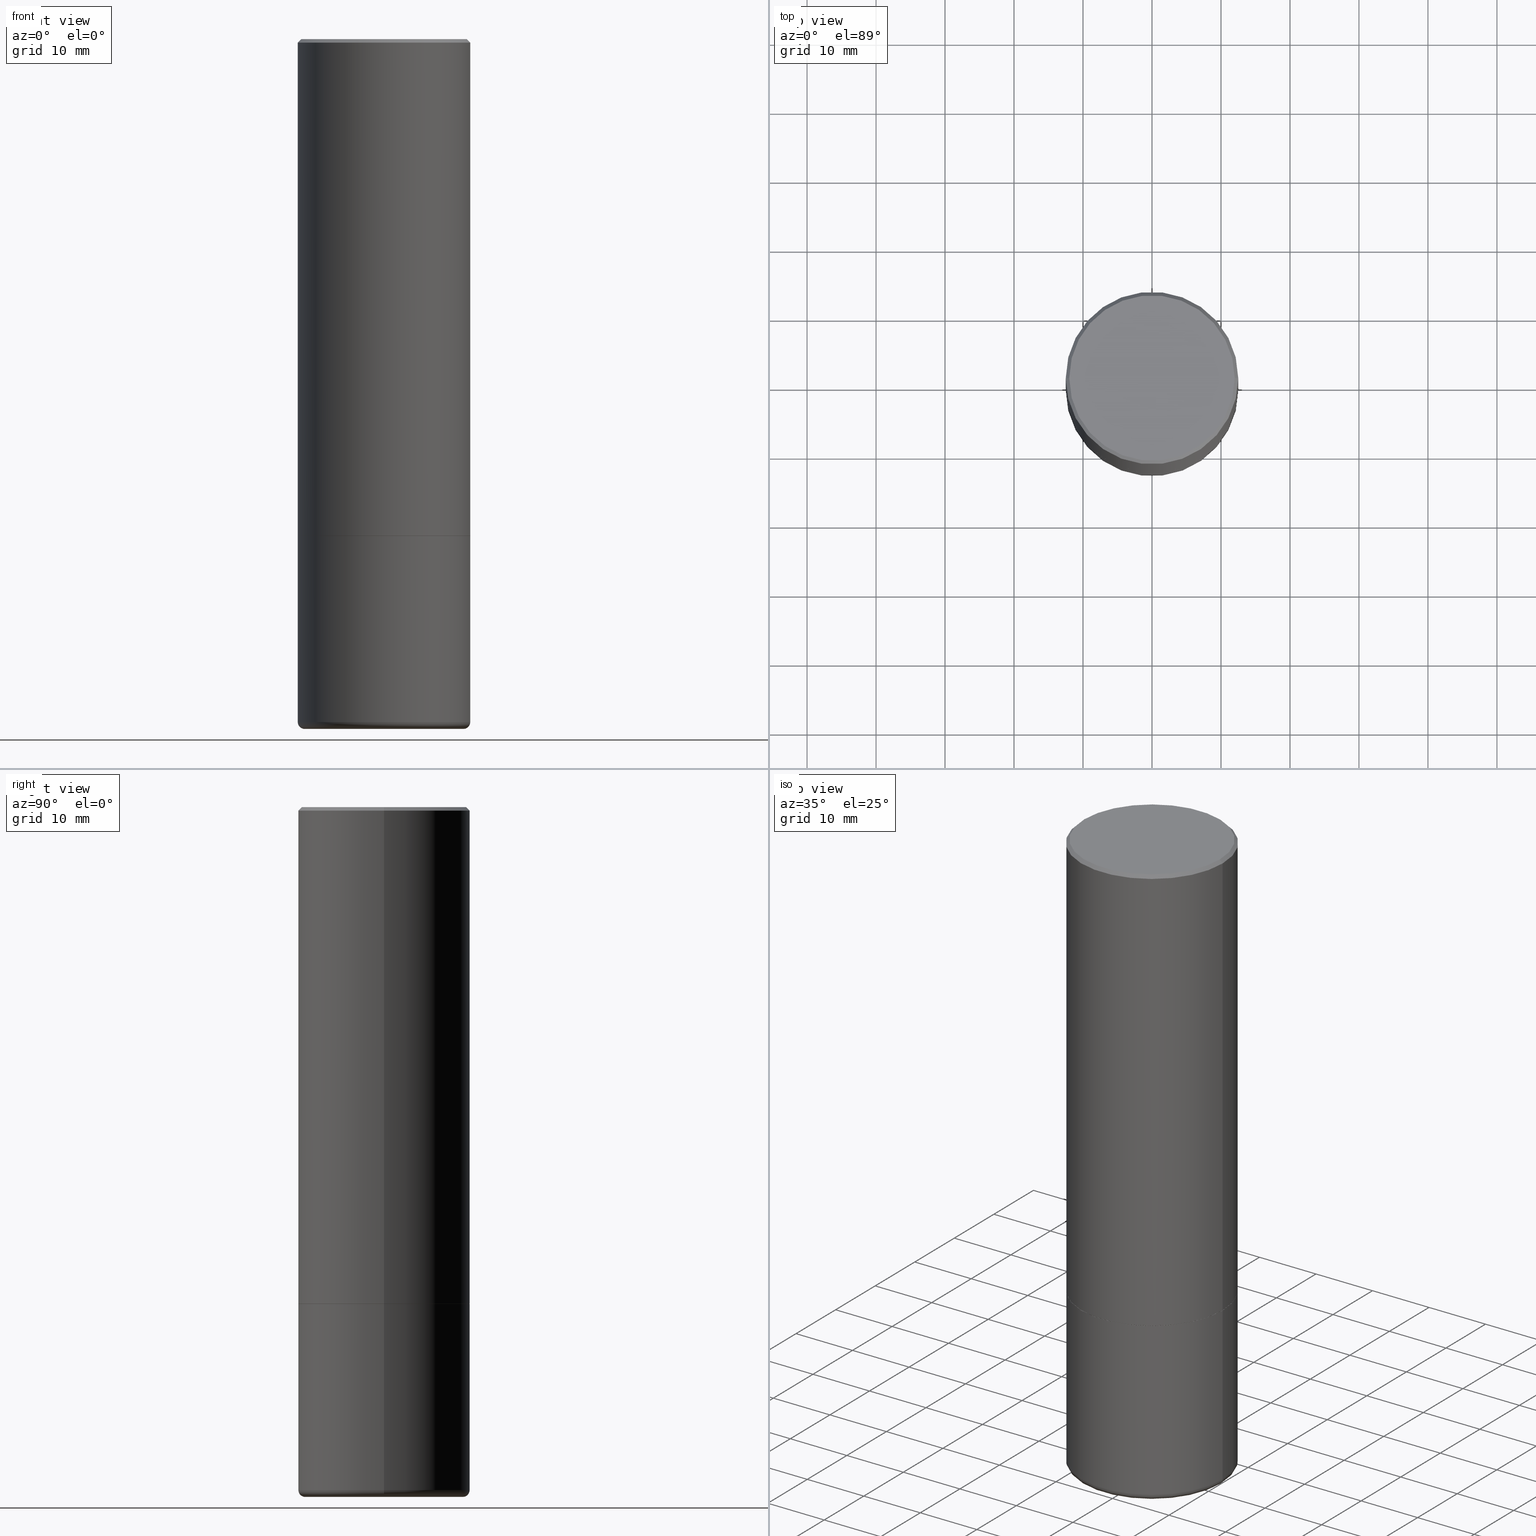
[diagram: canonical four-view strip — front | top / right | iso, engineering-drawing reading convention]
A machine part, canonical four-view strip (front | top / right | iso — engineering-drawing reading convention). The complete STEP part file that produces these views, byte-faithful:
ISO-10303-21;
HEADER;
FILE_DESCRIPTION (( 'STEP AP203' ),
    '1' );
FILE_NAME ('47091.STEP',
    '2024-03-05T19:52:35',
    ( '' ),
    ( '' ),
    'SwSTEP 2.0',
    'SolidWorks 2023',
    '' );
FILE_SCHEMA (( 'CONFIG_CONTROL_DESIGN' ));
ENDSEC;

DATA;
#1 = CARTESIAN_POINT ( 'NONE',  ( -0.4921499999999999764, 3.496936074043332897E-15, -2.420853904668951509E-29 ) ) ;
#2 = APPROVAL ( #293, 'UNSPECIFIED' ) ;
#3 = SHAPE_DEFINITION_REPRESENTATION ( #163, #88 ) ;
#4 = EDGE_LOOP ( 'NONE', ( #301, #158, #31, #171 ) ) ;
#5 = AXIS2_PLACEMENT_3D ( 'NONE', #11, #272, #70 ) ;
#6 = PERSON_AND_ORGANIZATION ( #377, #400 ) ;
#7 = CARTESIAN_POINT ( 'NONE',  ( 6.931925878012389760E-29, -9.896953003084782463E-15, -2.834600000000000453 ) ) ;
#8 = ADVANCED_FACE ( 'NONE', ( #323 ), #334, .F. ) ;
#9 = APPROVAL_STATUS ( 'not_yet_approved' ) ;
#10 = ORIENTED_EDGE ( 'NONE', *, *, #351, .F. ) ;
#11 = CARTESIAN_POINT ( 'NONE',  ( 0.000000000000000000, 0.000000000000000000, 0.000000000000000000 ) ) ;
#12 = APPLICATION_CONTEXT ( 'configuration controlled 3d designs of mechanical parts and assemblies' ) ;
#13 = CALENDAR_DATE ( 2024, 5, 3 ) ;
#14 = DIRECTION ( 'NONE',  ( 2.438088387897960049E-29, -3.491481338843145188E-15, -1.000000000000000000 ) ) ;
#15 = CARTESIAN_POINT ( 'NONE',  ( 0.4911499999999999755, -1.332663512223039065E-14, -2.834600000000000453 ) ) ;
#16 = DIRECTION ( 'NONE',  ( 2.445468806185136597E-29, -3.491481338843145583E-15, -1.000000000000000000 ) ) ;
#17 = CARTESIAN_POINT ( 'NONE',  ( 0.000000000000000000, 0.000000000000000000, 0.000000000000000000 ) ) ;
#18 = CIRCLE ( 'NONE', #253, 0.4921499999999999764 ) ;
#19 = DIRECTION ( 'NONE',  ( 1.000000000000000000, -6.982962677686265133E-15, 0.000000000000000000 ) ) ;
#20 = VERTEX_POINT ( 'NONE', #239 ) ;
#21 = CARTESIAN_POINT ( 'NONE',  ( -0.4921499999999999764, 3.366835455046432478E-15, -0.02000000000000010797 ) ) ;
#22 = LENGTH_MEASURE_WITH_UNIT ( LENGTH_MEASURE( 0.02539999999999999897 ), #190 );
#23 = ADVANCED_FACE ( 'NONE', ( #330 ), #241, .T. ) ;
#24 = CONICAL_SURFACE ( 'NONE', #375, 0.4911499999999999755, 0.7853981633974482790 ) ;
#25 = CARTESIAN_POINT ( 'NONE',  ( -0.4911499999999999755, -6.407122356399049785E-15, -2.834600000000000453 ) ) ;
#26 = DIRECTION ( 'NONE',  ( -2.445468806185136597E-29, 3.491481338843145583E-15, 1.000000000000000000 ) ) ;
#27 =( CONVERSION_BASED_UNIT ( 'INCH', #22 ) LENGTH_UNIT ( ) NAMED_UNIT ( #343 ) );
#28 = AXIS2_PLACEMENT_3D ( 'NONE', #290, #26, #318 ) ;
#29 = CARTESIAN_POINT ( 'NONE',  ( 0.000000000000000000, 0.000000000000000000, 0.000000000000000000 ) ) ;
#30 = ADVANCED_FACE ( 'NONE', ( #260 ), #230, .T. ) ;
#31 = ORIENTED_EDGE ( 'NONE', *, *, #246, .T. ) ;
#32 = DATE_AND_TIME ( #265, #55 ) ;
#33 = APPROVAL_ROLE ( '' ) ;
#34 = CARTESIAN_POINT ( 'NONE',  ( 3.297005828269567997E-15, 0.4721499999999996255, -1.509776258206526442E-15 ) ) ;
#35 = AXIS2_PLACEMENT_3D ( 'NONE', #302, #367, #129 ) ;
#36 = PERSON_AND_ORGANIZATION ( #377, #400 ) ;
#37 = APPROVAL_PERSON_ORGANIZATION ( #397, #2, #33 ) ;
#38 = FACE_OUTER_BOUND ( 'NONE', #182, .T. ) ;
#39 = PERSON_AND_ORGANIZATION ( #377, #400 ) ;
#40 = APPROVAL_ROLE ( '' ) ;
#41 = VERTEX_POINT ( 'NONE', #136 ) ;
#42 = AXIS2_PLACEMENT_3D ( 'NONE', #274, #275, #210 ) ;
#43 = APPLICATION_CONTEXT ( 'configuration controlled 3d designs of mechanical parts and assemblies' ) ;
#44 = VERTEX_POINT ( 'NONE', #228 ) ;
#45 = LOCAL_TIME ( 14, 52, 35.00000000000000000, #303 ) ;
#46 = DIRECTION ( 'NONE',  ( 1.000000000000000000, -6.982962677686265922E-15, 4.876176775795935793E-29 ) ) ;
#47 = EDGE_LOOP ( 'NONE', ( #82, #65 ) ) ;
#48 = CARTESIAN_POINT ( 'NONE',  ( 9.531459218987189074E-29, -1.360839766627504420E-14, -3.897600000000000176 ) ) ;
#49 = EDGE_CURVE ( 'NONE', #362, #149, #179, .T. ) ;
#50 = DIRECTION ( 'NONE',  ( -2.445468806185136597E-29, 3.491481338843145583E-15, 1.000000000000000000 ) ) ;
#51 = CIRCLE ( 'NONE', #79, 0.03939999999999978936 ) ;
#52 = DIRECTION ( 'NONE',  ( -2.445468806185136877E-29, 3.491481338843145188E-15, 1.000000000000000000 ) ) ;
#53 = ORIENTED_EDGE ( 'NONE', *, *, #258, .T. ) ;
#54 = CARTESIAN_POINT ( 'NONE',  ( 6.929480409206204157E-29, -9.893461521745937878E-15, -2.833600000000000119 ) ) ;
#55 = LOCAL_TIME ( 14, 52, 35.00000000000000000, #292 ) ;
#56 = LINE ( 'NONE', #288, #93 ) ;
#57 = DIRECTION ( 'NONE',  ( 1.000000000000000000, -6.982962677686264344E-15, 0.000000000000000000 ) ) ;
#58 = EDGE_CURVE ( 'NONE', #348, #298, #110, .T. ) ;
#59 = VECTOR ( 'NONE', #409, 39.37007874015748143 ) ;
#60 = ADVANCED_FACE ( 'NONE', ( #360 ), #24, .T. ) ;
#61 = VERTEX_POINT ( 'NONE', #63 ) ;
#62 = COORDINATED_UNIVERSAL_TIME_OFFSET ( 5, 0, .BEHIND. ) ;
#63 = CARTESIAN_POINT ( 'NONE',  ( 0.4721499999999996255, -3.342703923013973791E-15, 2.774533118565500199E-16 ) ) ;
#64 = CC_DESIGN_APPROVAL ( #176, ( #371 ) ) ;
#65 = ORIENTED_EDGE ( 'NONE', *, *, #211, .F. ) ;
#66 = DATE_AND_TIME ( #324, #123 ) ;
#67 = ORIENTED_EDGE ( 'NONE', *, *, #94, .T. ) ;
#68 = DESIGN_CONTEXT ( 'detailed design', #12, 'design' ) ;
#69 = EDGE_CURVE ( 'NONE', #44, #393, #218, .T. ) ;
#70 = DIRECTION ( 'NONE',  ( 1.000000000000000000, -6.982962677686265922E-15, 4.876176775795935793E-29 ) ) ;
#71 = CIRCLE ( 'NONE', #200, 0.4911499999999999755 ) ;
#72 = CARTESIAN_POINT ( 'NONE',  ( 6.931925878012389760E-29, -9.896953003084782463E-15, -2.834600000000000453 ) ) ;
#73 = CIRCLE ( 'NONE', #102, 0.4921499999999999764 ) ;
#74 = ORIENTED_EDGE ( 'NONE', *, *, #126, .T. ) ;
#75 = CARTESIAN_POINT ( 'NONE',  ( -0.4921499999999999764, -8.255739260636578857E-15, -2.834600000000000009 ) ) ;
#76 = ADVANCED_FACE ( 'NONE', ( #38 ), #340, .T. ) ;
#77 = DIRECTION ( 'NONE',  ( -2.445468806185136877E-29, 3.491481338843145188E-15, 1.000000000000000000 ) ) ;
#78 = DIRECTION ( 'NONE',  ( -2.445468806185136597E-29, 3.491481338843145583E-15, 1.000000000000000000 ) ) ;
#79 = AXIS2_PLACEMENT_3D ( 'NONE', #308, #245, #405 ) ;
#80 = DIRECTION ( 'NONE',  ( 1.000000000000000000, -6.982962677686265922E-15, 0.000000000000000000 ) ) ;
#81 = DIRECTION ( 'NONE',  ( 1.000000000000000000, -6.982962677686265922E-15, 4.876176775795935793E-29 ) ) ;
#82 = ORIENTED_EDGE ( 'NONE', *, *, #331, .F. ) ;
#83 = DIRECTION ( 'NONE',  ( -2.445468806185136597E-29, 3.491481338843145583E-15, 1.000000000000000000 ) ) ;
#84 = AXIS2_PLACEMENT_3D ( 'NONE', #54, #280, #181 ) ;
#85 = CLOSED_SHELL ( 'NONE', ( #60, #142, #221, #395, #120, #364, #276, #8 ) ) ;
#86 = APPROVAL_PERSON_ORGANIZATION ( #359, #89, #135 ) ;
#87 = DIRECTION ( 'NONE',  ( -1.000000000000000000, 6.982962677686265922E-15, -4.876176775795935793E-29 ) ) ;
#88 = ADVANCED_BREP_SHAPE_REPRESENTATION ( '47091', ( #96, #244, #295 ), #248 ) ;
#89 = APPROVAL ( #9, 'UNSPECIFIED' ) ;
#90 = PLANE ( 'NONE',  #282 ) ;
#91 = ORIENTED_EDGE ( 'NONE', *, *, #216, .T. ) ;
#92 = DIRECTION ( 'NONE',  ( -2.445468806185136877E-29, 3.491481338843145188E-15, 1.000000000000000000 ) ) ;
#93 = VECTOR ( 'NONE', #162, 39.37007874015748143 ) ;
#94 = EDGE_CURVE ( 'NONE', #362, #298, #402, .T. ) ;
#95 = DIRECTION ( 'NONE',  ( 1.000000000000000000, -6.982962677686265922E-15, 0.000000000000000000 ) ) ;
#96 = MANIFOLD_SOLID_BREP ( 'Body-Move/Copy2[1]', #309 ) ;
#97 = CALENDAR_DATE ( 2024, 5, 3 ) ;
#98 = ORIENTED_EDGE ( 'NONE', *, *, #126, .F. ) ;
#99 = PERSON_AND_ORGANIZATION_ROLE ( 'creator' ) ;
#100 = VERTEX_POINT ( 'NONE', #75 ) ;
#101 = AXIS2_PLACEMENT_3D ( 'NONE', #335, #16, #277 ) ;
#102 = AXIS2_PLACEMENT_3D ( 'NONE', #256, #217, #418 ) ;
#103 = APPROVAL_DATE_TIME ( #165, #2 ) ;
#104 = ORIENTED_EDGE ( 'NONE', *, *, #304, .T. ) ;
#105 = EDGE_CURVE ( 'NONE', #305, #61, #187, .T. ) ;
#106 = DIRECTION ( 'NONE',  ( 0.000000000000000000, 0.000000000000000000, 1.000000000000000000 ) ) ;
#107 = DIRECTION ( 'NONE',  ( -2.445468806185136597E-29, 3.491481338843145583E-15, 1.000000000000000000 ) ) ;
#108 = UNCERTAINTY_MEASURE_WITH_UNIT (LENGTH_MEASURE( 1.000000000000000082E-05 ), #27, 'distance_accuracy_value', 'NONE');
#109 = DIRECTION ( 'NONE',  ( 1.000000000000000000, -6.982962677686264344E-15, 0.000000000000000000 ) ) ;
#110 = CIRCLE ( 'NONE', #261, 0.4921499999999999764 ) ;
#111 = DIRECTION ( 'NONE',  ( -2.445468806185136597E-29, 3.491481338843145583E-15, 1.000000000000000000 ) ) ;
#112 = FACE_OUTER_BOUND ( 'NONE', #193, .T. ) ;
#113 = ORIENTED_EDGE ( 'NONE', *, *, #304, .F. ) ;
#114 = DIRECTION ( 'NONE',  ( -2.445468806185136597E-29, 3.491481338843145583E-15, 1.000000000000000000 ) ) ;
#115 = DIRECTION ( 'NONE',  ( -2.445468806185136597E-29, 3.491481338843145583E-15, 1.000000000000000000 ) ) ;
#116 = ORIENTED_EDGE ( 'NONE', *, *, #205, .F. ) ;
#117 = DIRECTION ( 'NONE',  ( 1.000000000000000000, -6.982962677686265922E-15, 4.876176775795935793E-29 ) ) ;
#118 = CARTESIAN_POINT ( 'NONE',  ( -0.4911499999999999755, -6.401823902050825805E-15, -2.834600000000000453 ) ) ;
#119 = LINE ( 'NONE', #1, #262 ) ;
#120 = ADVANCED_FACE ( 'NONE', ( #240 ), #347, .T. ) ;
#121 = VERTEX_POINT ( 'NONE', #141 ) ;
#122 = AXIS2_PLACEMENT_3D ( 'NONE', #243, #404, #177 ) ;
#123 = LOCAL_TIME ( 14, 52, 35.00000000000000000, #62 ) ;
#124 =( NAMED_UNIT ( * ) PLANE_ANGLE_UNIT ( ) SI_UNIT ( $, .RADIAN. ) );
#125 = CYLINDRICAL_SURFACE ( 'NONE', #207, 0.4921499999999999764 ) ;
#126 = EDGE_CURVE ( 'NONE', #149, #362, #327, .T. ) ;
#127 = PERSON_AND_ORGANIZATION_ROLE ( 'design_supplier' ) ;
#128 = ORIENTED_EDGE ( 'NONE', *, *, #205, .T. ) ;
#129 = DIRECTION ( 'NONE',  ( 1.000000000000000000, -6.982962677686265133E-15, 4.883557194083112340E-29 ) ) ;
#130 = PRODUCT_DEFINITION_FORMATION_WITH_SPECIFIED_SOURCE ( 'ANY', '', #222, .NOT_KNOWN. ) ;
#131 = MECHANICAL_CONTEXT ( 'NONE', #43, 'mechanical' ) ;
#132 = DIRECTION ( 'NONE',  ( 1.000000000000000000, -6.982962677686264344E-15, 0.000000000000000000 ) ) ;
#133 = SECURITY_CLASSIFICATION_LEVEL ( 'unclassified' ) ;
#134 = ORIENTED_EDGE ( 'NONE', *, *, #105, .T. ) ;
#135 = APPROVAL_ROLE ( '' ) ;
#136 = CARTESIAN_POINT ( 'NONE',  ( 0.4921499999999998098, -1.704506274809833840E-14, -3.897600000000000176 ) ) ;
#137 = AXIS2_PLACEMENT_3D ( 'NONE', #237, #366, #95 ) ;
#138 = CC_DESIGN_APPROVAL ( #2, ( #130 ) ) ;
#139 = ORIENTED_EDGE ( 'NONE', *, *, #69, .T. ) ;
#140 = DATE_AND_TIME ( #13, #45 ) ;
#141 = CARTESIAN_POINT ( 'NONE',  ( 0.4527499999999999858, -1.690749838334791918E-14, -3.936999999999999389 ) ) ;
#142 = ADVANCED_FACE ( 'NONE', ( #184 ), #338, .T. ) ;
#143 = LINE ( 'NONE', #21, #59 ) ;
#144 = AXIS2_PLACEMENT_3D ( 'NONE', #406, #306, #80 ) ;
#145 = CC_DESIGN_SECURITY_CLASSIFICATION ( #371, ( #130 ) ) ;
#146 = LINE ( 'NONE', #249, #234 ) ;
#147 = AXIS2_PLACEMENT_3D ( 'NONE', #350, #254, #259 ) ;
#148 = CARTESIAN_POINT ( 'NONE',  ( -6.785034193178930130E-45, 9.687230607472910058E-31, 2.774533118565267978E-16 ) ) ;
#149 = VERTEX_POINT ( 'NONE', #369 ) ;
#150 = DIRECTION ( 'NONE',  ( 1.000000000000000000, -6.982962677686265133E-15, 4.883557194083112340E-29 ) ) ;
#151 = EDGE_CURVE ( 'NONE', #305, #298, #143, .T. ) ;
#152 = FACE_OUTER_BOUND ( 'NONE', #233, .T. ) ;
#153 = CIRCLE ( 'NONE', #389, 0.4921499999999999764 ) ;
#154 = VECTOR ( 'NONE', #155, 39.37007874015748854 ) ;
#155 = DIRECTION ( 'NONE',  ( 0.7071067811865474617, -2.468850131082256666E-15, 0.7071067811865474617 ) ) ;
#156 = EDGE_CURVE ( 'NONE', #61, #305, #417, .T. ) ;
#157 = DIRECTION ( 'NONE',  ( 1.000000000000000000, -6.982962677686265922E-15, 0.000000000000000000 ) ) ;
#158 = ORIENTED_EDGE ( 'NONE', *, *, #49, .T. ) ;
#159 = ORIENTED_EDGE ( 'NONE', *, *, #354, .T. ) ;
#160 = VECTOR ( 'NONE', #77, 39.37007874015748143 ) ;
#161 = ORIENTED_EDGE ( 'NONE', *, *, #281, .F. ) ;
#162 = DIRECTION ( 'NONE',  ( -2.445468806185136877E-29, 3.491481338843145188E-15, 1.000000000000000000 ) ) ;
#163 = PRODUCT_DEFINITION_SHAPE ( 'NONE', 'NONE',  #317 ) ;
#164 =( NAMED_UNIT ( * ) SI_UNIT ( $, .STERADIAN. ) SOLID_ANGLE_UNIT ( ) );
#165 = DATE_AND_TIME ( #299, #225 ) ;
#166 = ORIENTED_EDGE ( 'NONE', *, *, #345, .F. ) ;
#167 = DATE_TIME_ROLE ( 'creation_date' ) ;
#168 = ORIENTED_EDGE ( 'NONE', *, *, #211, .T. ) ;
#169 = ADVANCED_FACE ( 'NONE', ( #112 ), #178, .T. ) ;
#170 = DATE_TIME_ROLE ( 'classification_date' ) ;
#171 = ORIENTED_EDGE ( 'NONE', *, *, #321, .F. ) ;
#172 = PERSON_AND_ORGANIZATION_ROLE ( 'creator' ) ;
#173 = CARTESIAN_POINT ( 'NONE',  ( -0.4527499999999999858, -1.039141543012119071E-14, -3.897600000000000176 ) ) ;
#174 = CONICAL_SURFACE ( 'NONE', #101, 0.4921499999999999764, 0.7853981633974471688 ) ;
#175 = EDGE_LOOP ( 'NONE', ( #413, #337, #98, #297 ) ) ;
#176 = APPROVAL ( #332, 'UNSPECIFIED' ) ;
#177 = DIRECTION ( 'NONE',  ( 1.000000000000000000, -6.982962677686265922E-15, 4.882029041999365698E-29 ) ) ;
#178 = PLANE ( 'NONE',  #42 ) ;
#179 = CIRCLE ( 'NONE', #137, 0.4921500000000003094 ) ;
#180 = AXIS2_PLACEMENT_3D ( 'NONE', #186, #316, #57 ) ;
#181 = DIRECTION ( 'NONE',  ( 1.000000000000000000, -6.982962677686265922E-15, 0.000000000000000000 ) ) ;
#182 = EDGE_LOOP ( 'NONE', ( #383, #53, #313, #113 ) ) ;
#183 = CC_DESIGN_PERSON_AND_ORGANIZATION_ASSIGNMENT ( #6, #231, ( #371 ) ) ;
#184 = FACE_OUTER_BOUND ( 'NONE', #291, .T. ) ;
#185 = LINE ( 'NONE', #25, #188 ) ;
#186 = CARTESIAN_POINT ( 'NONE',  ( 6.931925878012389760E-29, -9.896953003084782463E-15, -2.834600000000000453 ) ) ;
#187 = CIRCLE ( 'NONE', #122, 0.4721499999999996255 ) ;
#188 = VECTOR ( 'NONE', #349, 39.37007874015748854 ) ;
#189 = CARTESIAN_POINT ( 'NONE',  ( -0.4921500000000003094, -1.484709500218062761E-15, -2.833600000000000119 ) ) ;
#190 =( LENGTH_UNIT ( ) NAMED_UNIT ( * ) SI_UNIT ( $, .METRE. ) );
#191 = AXIS2_PLACEMENT_3D ( 'NONE', #17, #339, #311 ) ;
#192 = APPROVAL_PERSON_ORGANIZATION ( #236, #176, #40 ) ;
#193 = EDGE_LOOP ( 'NONE', ( #278, #268 ) ) ;
#194 = VERTEX_POINT ( 'NONE', #15 ) ;
#195 = DIRECTION ( 'NONE',  ( 1.000000000000000000, 0.000000000000000000, 0.000000000000000000 ) ) ;
#196 = EDGE_CURVE ( 'NONE', #61, #348, #146, .T. ) ;
#197 = ORIENTED_EDGE ( 'NONE', *, *, #246, .F. ) ;
#198 = COORDINATED_UNIVERSAL_TIME_OFFSET ( 5, 0, .BEHIND. ) ;
#199 = DIRECTION ( 'NONE',  ( 7.105427357601001859E-15, 1.000000000000000000, -3.491481338843145583E-15 ) ) ;
#200 = AXIS2_PLACEMENT_3D ( 'NONE', #72, #111, #109 ) ;
#201 = EDGE_CURVE ( 'NONE', #121, #41, #51, .T. ) ;
#202 = ORIENTED_EDGE ( 'NONE', *, *, #321, .T. ) ;
#203 = COORDINATED_UNIVERSAL_TIME_OFFSET ( 5, 0, .BEHIND. ) ;
#204 = CARTESIAN_POINT ( 'NONE',  ( 4.890937612370299433E-31, -6.982962677686328587E-17, -0.02000000000000010797 ) ) ;
#205 = EDGE_CURVE ( 'NONE', #41, #393, #355, .T. ) ;
#206 = ORIENTED_EDGE ( 'NONE', *, *, #196, .T. ) ;
#207 = AXIS2_PLACEMENT_3D ( 'NONE', #29, #384, #117 ) ;
#208 = FACE_OUTER_BOUND ( 'NONE', #255, .T. ) ;
#209 = CARTESIAN_POINT ( 'NONE',  ( -0.4921500000000000874, 3.496936074043333686E-15, -2.420853904668952350E-29 ) ) ;
#210 = DIRECTION ( 'NONE',  ( -1.000000000000000000, 6.982962677686265922E-15, -4.876176775795935793E-29 ) ) ;
#211 = EDGE_CURVE ( 'NONE', #284, #194, #71, .T. ) ;
#212 = VECTOR ( 'NONE', #52, 39.37007874015748143 ) ;
#213 = DIRECTION ( 'NONE',  ( 1.000000000000000000, -6.982962677686265133E-15, 0.000000000000000000 ) ) ;
#214 = DIRECTION ( 'NONE',  ( -2.445468806185136597E-29, 3.491481338843145583E-15, 1.000000000000000000 ) ) ;
#215 = DIRECTION ( 'NONE',  ( -2.445468806185136597E-29, 3.491481338843145583E-15, 1.000000000000000000 ) ) ;
#216 = EDGE_CURVE ( 'NONE', #100, #20, #18, .T. ) ;
#217 = DIRECTION ( 'NONE',  ( -2.445468806185136597E-29, 3.491481338843145583E-15, 1.000000000000000000 ) ) ;
#218 = CIRCLE ( 'NONE', #387, 0.03939999999999978936 ) ;
#219 = CARTESIAN_POINT ( 'NONE',  ( -0.4921499999999998098, -1.011146159223171209E-14, -3.897600000000000176 ) ) ;
#220 = FACE_OUTER_BOUND ( 'NONE', #396, .T. ) ;
#221 = ADVANCED_FACE ( 'NONE', ( #208 ), #174, .T. ) ;
#222 = PRODUCT ( '47091', '47091', '', ( #131 ) ) ;
#223 = PLANE ( 'NONE',  #328 ) ;
#224 = AXIS2_PLACEMENT_3D ( 'NONE', #374, #78, #213 ) ;
#225 = LOCAL_TIME ( 14, 52, 35.00000000000000000, #203 ) ;
#226 = EDGE_LOOP ( 'NONE', ( #363, #139, #116, #361 ) ) ;
#227 = ORIENTED_EDGE ( 'NONE', *, *, #151, .F. ) ;
#228 = CARTESIAN_POINT ( 'NONE',  ( -0.4527499999999999858, -1.032022069355166022E-14, -3.936999999999999389 ) ) ;
#229 = APPLICATION_PROTOCOL_DEFINITION ( 'international standard', 'config_control_design', 1994, #43 ) ;
#230 = CYLINDRICAL_SURFACE ( 'NONE', #5, 0.4921499999999999764 ) ;
#231 = PERSON_AND_ORGANIZATION_ROLE ( 'classification_officer' ) ;
#232 = ORIENTED_EDGE ( 'NONE', *, *, #58, .T. ) ;
#233 = EDGE_LOOP ( 'NONE', ( #10, #168, #159, #346 ) ) ;
#234 = VECTOR ( 'NONE', #378, 39.37007874015748143 ) ;
#235 = CC_DESIGN_APPROVAL ( #89, ( #317 ) ) ;
#236 = PERSON_AND_ORGANIZATION ( #377, #400 ) ;
#237 = CARTESIAN_POINT ( 'NONE',  ( 6.929480409206204157E-29, -9.893461521745937878E-15, -2.833600000000000119 ) ) ;
#238 = CC_DESIGN_PERSON_AND_ORGANIZATION_ASSIGNMENT ( #267, #127, ( #130 ) ) ;
#239 = CARTESIAN_POINT ( 'NONE',  ( 0.4921499999999999764, -1.333361808490807666E-14, -2.834600000000000009 ) ) ;
#240 = FACE_OUTER_BOUND ( 'NONE', #4, .T. ) ;
#241 = TOROIDAL_SURFACE ( 'NONE', #35, 0.4527499999999999858, 0.03939999999999978936 ) ;
#242 = CIRCLE ( 'NONE', #341, 0.4921499999999999764 ) ;
#243 = CARTESIAN_POINT ( 'NONE',  ( -6.785034193178930130E-45, 9.687230607472910058E-31, 2.774533118565267978E-16 ) ) ;
#244 = MANIFOLD_SOLID_BREP ( 'Body-Move/Copy2[2]', #85 ) ;
#245 = DIRECTION ( 'NONE',  ( -6.982962677686266711E-15, -1.000000000000000000, 3.491481338843145583E-15 ) ) ;
#246 = EDGE_CURVE ( 'NONE', #149, #348, #373, .T. ) ;
#247 = CARTESIAN_POINT ( 'NONE',  ( 6.931925878012387517E-29, -9.896953003084780885E-15, -2.834600000000000009 ) ) ;
#248 =( GEOMETRIC_REPRESENTATION_CONTEXT ( 3 ) GLOBAL_UNCERTAINTY_ASSIGNED_CONTEXT ( ( #108 ) ) GLOBAL_UNIT_ASSIGNED_CONTEXT ( ( #27, #124, #164 ) ) REPRESENTATION_CONTEXT ( 'NONE', 'WORKASPACE' ) );
#249 = CARTESIAN_POINT ( 'NONE',  ( 0.4921499999999999764, -3.446223716380122349E-15, -0.02000000000000010797 ) ) ;
#250 = EDGE_CURVE ( 'NONE', #121, #44, #410, .T. ) ;
#251 = LINE ( 'NONE', #379, #154 ) ;
#252 = DIRECTION ( 'NONE',  ( 1.000000000000000000, -6.982962677686265922E-15, 0.000000000000000000 ) ) ;
#253 = AXIS2_PLACEMENT_3D ( 'NONE', #247, #214, #307 ) ;
#254 = DIRECTION ( 'NONE',  ( 2.445468806185136597E-29, -3.491481338843145583E-15, -1.000000000000000000 ) ) ;
#255 = EDGE_LOOP ( 'NONE', ( #370, #206, #232, #227 ) ) ;
#256 = CARTESIAN_POINT ( 'NONE',  ( 4.890937612370299433E-31, -6.982962677686328587E-17, -0.02000000000000010797 ) ) ;
#257 = ORIENTED_EDGE ( 'NONE', *, *, #345, .T. ) ;
#258 = EDGE_CURVE ( 'NONE', #44, #121, #398, .T. ) ;
#259 = DIRECTION ( 'NONE',  ( -1.000000000000000000, 6.982962677686265922E-15, 0.000000000000000000 ) ) ;
#260 = FACE_OUTER_BOUND ( 'NONE', #399, .T. ) ;
#261 = AXIS2_PLACEMENT_3D ( 'NONE', #204, #107, #358 ) ;
#262 = VECTOR ( 'NONE', #92, 39.37007874015748143 ) ;
#263 = PRODUCT_RELATED_PRODUCT_CATEGORY ( 'detail', '', ( #222 ) ) ;
#264 = ORIENTED_EDGE ( 'NONE', *, *, #281, .T. ) ;
#265 = CALENDAR_DATE ( 2024, 5, 3 ) ;
#266 = ORIENTED_EDGE ( 'NONE', *, *, #376, .F. ) ;
#267 = PERSON_AND_ORGANIZATION ( #377, #400 ) ;
#268 = ORIENTED_EDGE ( 'NONE', *, *, #258, .F. ) ;
#269 = ORIENTED_EDGE ( 'NONE', *, *, #105, .F. ) ;
#270 = AXIS2_PLACEMENT_3D ( 'NONE', #48, #342, #150 ) ;
#271 = APPROVAL_DATE_TIME ( #140, #176 ) ;
#272 = DIRECTION ( 'NONE',  ( -2.445468806185136597E-29, 3.491481338843145583E-15, 1.000000000000000000 ) ) ;
#273 = CC_DESIGN_PERSON_AND_ORGANIZATION_ASSIGNMENT ( #36, #172, ( #130 ) ) ;
#274 = CARTESIAN_POINT ( 'NONE',  ( 1.294548082096728723E-28, -8.994869573352928875E-15, -3.937000000000000277 ) ) ;
#275 = DIRECTION ( 'NONE',  ( 2.438088387897960049E-29, -3.491481338843145188E-15, -1.000000000000000000 ) ) ;
#276 = ADVANCED_FACE ( 'NONE', ( #415 ), #90, .F. ) ;
#277 = DIRECTION ( 'NONE',  ( -1.000000000000000000, 6.982962677686265922E-15, 0.000000000000000000 ) ) ;
#278 = ORIENTED_EDGE ( 'NONE', *, *, #250, .F. ) ;
#279 = CARTESIAN_POINT ( 'NONE',  ( 9.627810689950881427E-29, -1.374596203102546184E-14, -3.936999999999999389 ) ) ;
#280 = DIRECTION ( 'NONE',  ( -2.445468806185136597E-29, 3.491481338843145583E-15, 1.000000000000000000 ) ) ;
#281 = EDGE_CURVE ( 'NONE', #41, #20, #56, .T. ) ;
#282 = AXIS2_PLACEMENT_3D ( 'NONE', #356, #412, #81 ) ;
#283 = CARTESIAN_POINT ( 'NONE',  ( 9.531459218987189074E-29, -1.360839766627504420E-14, -3.897600000000000176 ) ) ;
#284 = VERTEX_POINT ( 'NONE', #118 ) ;
#285 = CARTESIAN_POINT ( 'NONE',  ( 6.931925878012387517E-29, -9.896953003084780885E-15, -2.834600000000000009 ) ) ;
#286 = ORIENTED_EDGE ( 'NONE', *, *, #156, .T. ) ;
#287 = AXIS2_PLACEMENT_3D ( 'NONE', #279, #50, #19 ) ;
#288 = CARTESIAN_POINT ( 'NONE',  ( 0.4921499999999999764, -3.436665081823295777E-15, 2.399810400207969603E-29 ) ) ;
#289 = ADVANCED_FACE ( 'NONE', ( #386 ), #125, .T. ) ;
#290 = CARTESIAN_POINT ( 'NONE',  ( 6.931925878012389760E-29, -9.896953003084782463E-15, -2.834600000000000453 ) ) ;
#291 = EDGE_LOOP ( 'NONE', ( #74, #67, #344, #197 ) ) ;
#292 = COORDINATED_UNIVERSAL_TIME_OFFSET ( 5, 0, .BEHIND. ) ;
#293 = APPROVAL_STATUS ( 'not_yet_approved' ) ;
#294 = DIRECTION ( 'NONE',  ( -1.000000000000000000, 6.982962677686265922E-15, -4.876176775795935793E-29 ) ) ;
#295 = AXIS2_PLACEMENT_3D ( 'NONE', #322, #106, #195 ) ;
#296 = ORIENTED_EDGE ( 'NONE', *, *, #196, .F. ) ;
#297 = ORIENTED_EDGE ( 'NONE', *, *, #354, .F. ) ;
#298 = VERTEX_POINT ( 'NONE', #320 ) ;
#299 = CALENDAR_DATE ( 2024, 5, 3 ) ;
#300 = EDGE_LOOP ( 'NONE', ( #257, #91 ) ) ;
#301 = ORIENTED_EDGE ( 'NONE', *, *, #94, .F. ) ;
#302 = CARTESIAN_POINT ( 'NONE',  ( 9.531459218987189074E-29, -1.360839766627504420E-14, -3.897600000000000176 ) ) ;
#303 = COORDINATED_UNIVERSAL_TIME_OFFSET ( 5, 0, .BEHIND. ) ;
#304 = EDGE_CURVE ( 'NONE', #393, #41, #153, .T. ) ;
#305 = VERTEX_POINT ( 'NONE', #416 ) ;
#306 = DIRECTION ( 'NONE',  ( -2.445468806185136597E-29, 3.491481338843145583E-15, 1.000000000000000000 ) ) ;
#307 = DIRECTION ( 'NONE',  ( 1.000000000000000000, -6.982962677686265922E-15, 0.000000000000000000 ) ) ;
#308 = CARTESIAN_POINT ( 'NONE',  ( 0.4527499999999999858, -1.676993401859749997E-14, -3.897600000000000176 ) ) ;
#309 = CLOSED_SHELL ( 'NONE', ( #30, #23, #408, #289, #76, #169 ) ) ;
#310 = DIRECTION ( 'NONE',  ( 1.000000000000000000, -6.982962677686265922E-15, 4.882029041999365698E-29 ) ) ;
#311 = DIRECTION ( 'NONE',  ( 1.000000000000000000, -6.982962677686265922E-15, 4.876176775795935793E-29 ) ) ;
#312 = CARTESIAN_POINT ( 'NONE',  ( 6.931925878012387517E-29, -9.896953003084780885E-15, -2.834600000000000009 ) ) ;
#313 = ORIENTED_EDGE ( 'NONE', *, *, #201, .T. ) ;
#314 = LOCAL_TIME ( 14, 52, 35.00000000000000000, #198 ) ;
#315 = CARTESIAN_POINT ( 'NONE',  ( 0.4921499999999999764, -3.446223716380122349E-15, -0.02000000000000010797 ) ) ;
#316 = DIRECTION ( 'NONE',  ( -2.445468806185136597E-29, 3.491481338843145583E-15, 1.000000000000000000 ) ) ;
#317 = PRODUCT_DEFINITION ( 'UNKNOWN', '', #130, #68 ) ;
#318 = DIRECTION ( 'NONE',  ( 1.000000000000000000, -6.982962677686264344E-15, 0.000000000000000000 ) ) ;
#319 = AXIS2_PLACEMENT_3D ( 'NONE', #34, #14, #294 ) ;
#320 = CARTESIAN_POINT ( 'NONE',  ( -0.4921499999999999764, 3.366835455046432478E-15, -0.02000000000000010797 ) ) ;
#321 = EDGE_CURVE ( 'NONE', #298, #348, #73, .T. ) ;
#322 = CARTESIAN_POINT ( 'NONE',  ( 0.000000000000000000, 0.000000000000000000, 0.000000000000000000 ) ) ;
#323 = FACE_OUTER_BOUND ( 'NONE', #385, .T. ) ;
#324 = CALENDAR_DATE ( 2024, 5, 3 ) ;
#325 = AXIS2_PLACEMENT_3D ( 'NONE', #148, #114, #310 ) ;
#326 = DIRECTION ( 'NONE',  ( -1.000000000000000000, 7.105427357601014480E-15, 0.000000000000000000 ) ) ;
#327 = CIRCLE ( 'NONE', #84, 0.4921500000000003094 ) ;
#328 = AXIS2_PLACEMENT_3D ( 'NONE', #312, #382, #87 ) ;
#329 = PERSON_AND_ORGANIZATION ( #377, #400 ) ;
#330 = FACE_OUTER_BOUND ( 'NONE', #226, .T. ) ;
#331 = EDGE_CURVE ( 'NONE', #194, #284, #357, .T. ) ;
#332 = APPROVAL_STATUS ( 'not_yet_approved' ) ;
#333 = DIRECTION ( 'NONE',  ( -2.445468806185136597E-29, 3.491481338843145583E-15, 1.000000000000000000 ) ) ;
#334 = PLANE ( 'NONE',  #319 ) ;
#335 = CARTESIAN_POINT ( 'NONE',  ( 4.890937612370299433E-31, -6.982962677686328587E-17, -0.02000000000000010797 ) ) ;
#336 = CC_DESIGN_DATE_AND_TIME_ASSIGNMENT ( #365, #167, ( #317 ) ) ;
#337 = ORIENTED_EDGE ( 'NONE', *, *, #351, .T. ) ;
#338 = CYLINDRICAL_SURFACE ( 'NONE', #191, 0.4921500000000000874 ) ;
#339 = DIRECTION ( 'NONE',  ( -2.445468806185136597E-29, 3.491481338843145583E-15, 1.000000000000000000 ) ) ;
#340 = TOROIDAL_SURFACE ( 'NONE', #270, 0.4527499999999999858, 0.03939999999999978936 ) ;
#341 = AXIS2_PLACEMENT_3D ( 'NONE', #285, #215, #157 ) ;
#342 = DIRECTION ( 'NONE',  ( -2.445468806185136597E-29, 3.491481338843145583E-15, 1.000000000000000000 ) ) ;
#343 = DIMENSIONAL_EXPONENTS ( 1.000000000000000000, 0.000000000000000000, 0.000000000000000000, 0.000000000000000000, 0.000000000000000000, 0.000000000000000000, 0.000000000000000000 ) ;
#344 = ORIENTED_EDGE ( 'NONE', *, *, #58, .F. ) ;
#345 = EDGE_CURVE ( 'NONE', #20, #100, #242, .T. ) ;
#346 = ORIENTED_EDGE ( 'NONE', *, *, #49, .F. ) ;
#347 = CYLINDRICAL_SURFACE ( 'NONE', #380, 0.4921500000000000874 ) ;
#348 = VERTEX_POINT ( 'NONE', #315 ) ;
#349 = DIRECTION ( 'NONE',  ( -0.7071067811865474617, 7.493145998870352582E-15, 0.7071067811865474617 ) ) ;
#350 = CARTESIAN_POINT ( 'NONE',  ( 4.890937612370299433E-31, -6.982962677686328587E-17, -0.02000000000000010797 ) ) ;
#351 = EDGE_CURVE ( 'NONE', #284, #362, #185, .T. ) ;
#352 = FACE_OUTER_BOUND ( 'NONE', #300, .T. ) ;
#353 = ORIENTED_EDGE ( 'NONE', *, *, #151, .T. ) ;
#354 = EDGE_CURVE ( 'NONE', #194, #149, #251, .T. ) ;
#355 = CIRCLE ( 'NONE', #144, 0.4921499999999999764 ) ;
#356 = CARTESIAN_POINT ( 'NONE',  ( 6.931925878012389760E-29, -9.896953003084782463E-15, -2.834600000000000453 ) ) ;
#357 = CIRCLE ( 'NONE', #28, 0.4911499999999999755 ) ;
#358 = DIRECTION ( 'NONE',  ( 1.000000000000000000, -6.982962677686265922E-15, 0.000000000000000000 ) ) ;
#359 = PERSON_AND_ORGANIZATION ( #377, #400 ) ;
#360 = FACE_OUTER_BOUND ( 'NONE', #175, .T. ) ;
#361 = ORIENTED_EDGE ( 'NONE', *, *, #201, .F. ) ;
#362 = VERTEX_POINT ( 'NONE', #189 ) ;
#363 = ORIENTED_EDGE ( 'NONE', *, *, #250, .T. ) ;
#364 = ADVANCED_FACE ( 'NONE', ( #152 ), #411, .T. ) ;
#365 = DATE_AND_TIME ( #97, #314 ) ;
#366 = DIRECTION ( 'NONE',  ( -2.445468806185136597E-29, 3.491481338843145583E-15, 1.000000000000000000 ) ) ;
#367 = DIRECTION ( 'NONE',  ( -2.445468806185136597E-29, 3.491481338843145583E-15, 1.000000000000000000 ) ) ;
#368 = CC_DESIGN_PERSON_AND_ORGANIZATION_ASSIGNMENT ( #329, #394, ( #222 ) ) ;
#369 = CARTESIAN_POINT ( 'NONE',  ( 0.4921500000000003094, -1.333012660356923523E-14, -2.833600000000000119 ) ) ;
#370 = ORIENTED_EDGE ( 'NONE', *, *, #156, .F. ) ;
#371 = SECURITY_CLASSIFICATION ( '', '', #133 ) ;
#372 = CARTESIAN_POINT ( 'NONE',  ( 0.4921500000000000874, -3.436665081823296565E-15, 2.399810400207970163E-29 ) ) ;
#373 = LINE ( 'NONE', #372, #160 ) ;
#374 = CARTESIAN_POINT ( 'NONE',  ( 9.627810689950881427E-29, -1.374596203102546184E-14, -3.936999999999999389 ) ) ;
#375 = AXIS2_PLACEMENT_3D ( 'NONE', #7, #333, #132 ) ;
#376 = EDGE_CURVE ( 'NONE', #393, #100, #119, .T. ) ;
#377 = PERSON ( 'UNSPECIFIED', 'UNSPECIFIED', 'UNSPECIFIED', ('UNSPECIFIED'), ('UNSPECIFIED'), ('UNSPECIFIED') ) ;
#378 = DIRECTION ( 'NONE',  ( 0.7071067811865466846, -7.319954787623252890E-15, -0.7071067811865483499 ) ) ;
#379 = CARTESIAN_POINT ( 'NONE',  ( 0.4911499999999999755, -1.332663512223039065E-14, -2.834600000000000453 ) ) ;
#380 = AXIS2_PLACEMENT_3D ( 'NONE', #407, #115, #46 ) ;
#381 = CONICAL_SURFACE ( 'NONE', #147, 0.4921499999999999764, 0.7853981633974471688 ) ;
#382 = DIRECTION ( 'NONE',  ( 2.438088387897960049E-29, -3.491481338843145188E-15, -1.000000000000000000 ) ) ;
#383 = ORIENTED_EDGE ( 'NONE', *, *, #69, .F. ) ;
#384 = DIRECTION ( 'NONE',  ( -2.445468806185136597E-29, 3.491481338843145583E-15, 1.000000000000000000 ) ) ;
#385 = EDGE_LOOP ( 'NONE', ( #134, #286 ) ) ;
#386 = FACE_OUTER_BOUND ( 'NONE', #390, .T. ) ;
#387 = AXIS2_PLACEMENT_3D ( 'NONE', #173, #199, #326 ) ;
#388 = APPLICATION_PROTOCOL_DEFINITION ( 'international standard', 'config_control_design', 1994, #12 ) ;
#389 = AXIS2_PLACEMENT_3D ( 'NONE', #283, #83, #252 ) ;
#390 = EDGE_LOOP ( 'NONE', ( #266, #104, #264, #401 ) ) ;
#391 = ORIENTED_EDGE ( 'NONE', *, *, #376, .T. ) ;
#392 = APPROVAL_DATE_TIME ( #66, #89 ) ;
#393 = VERTEX_POINT ( 'NONE', #219 ) ;
#394 = PERSON_AND_ORGANIZATION_ROLE ( 'design_owner' ) ;
#395 = ADVANCED_FACE ( 'NONE', ( #220 ), #381, .T. ) ;
#396 = EDGE_LOOP ( 'NONE', ( #296, #269, #353, #202 ) ) ;
#397 = PERSON_AND_ORGANIZATION ( #377, #400 ) ;
#398 = CIRCLE ( 'NONE', #224, 0.4527499999999999858 ) ;
#399 = EDGE_LOOP ( 'NONE', ( #128, #391, #166, #161 ) ) ;
#400 = ORGANIZATION ( 'UNSPECIFIED', 'UNSPECIFIED', '' ) ;
#401 = ORIENTED_EDGE ( 'NONE', *, *, #216, .F. ) ;
#402 = LINE ( 'NONE', #209, #212 ) ;
#403 = CC_DESIGN_DATE_AND_TIME_ASSIGNMENT ( #32, #170, ( #371 ) ) ;
#404 = DIRECTION ( 'NONE',  ( -2.445468806185136597E-29, 3.491481338843145583E-15, 1.000000000000000000 ) ) ;
#405 = DIRECTION ( 'NONE',  ( 1.000000000000000000, -6.982962677686266711E-15, 0.000000000000000000 ) ) ;
#406 = CARTESIAN_POINT ( 'NONE',  ( 9.531459218987189074E-29, -1.360839766627504420E-14, -3.897600000000000176 ) ) ;
#407 = CARTESIAN_POINT ( 'NONE',  ( 0.000000000000000000, 0.000000000000000000, 0.000000000000000000 ) ) ;
#408 = ADVANCED_FACE ( 'NONE', ( #352 ), #223, .F. ) ;
#409 = DIRECTION ( 'NONE',  ( -0.7071067811865466846, 2.468850131082247989E-15, -0.7071067811865483499 ) ) ;
#410 = CIRCLE ( 'NONE', #287, 0.4527499999999999858 ) ;
#411 = CONICAL_SURFACE ( 'NONE', #180, 0.4911499999999999755, 0.7853981633974482790 ) ;
#412 = DIRECTION ( 'NONE',  ( -2.438088387897960049E-29, 3.491481338843145188E-15, 1.000000000000000000 ) ) ;
#413 = ORIENTED_EDGE ( 'NONE', *, *, #331, .T. ) ;
#414 = CC_DESIGN_PERSON_AND_ORGANIZATION_ASSIGNMENT ( #39, #99, ( #317 ) ) ;
#415 = FACE_OUTER_BOUND ( 'NONE', #47, .T. ) ;
#416 = CARTESIAN_POINT ( 'NONE',  ( -0.4721499999999996255, 3.331920641658000829E-15, 2.774533118565036250E-16 ) ) ;
#417 = CIRCLE ( 'NONE', #325, 0.4721499999999996255 ) ;
#418 = DIRECTION ( 'NONE',  ( 1.000000000000000000, -6.982962677686265922E-15, 0.000000000000000000 ) ) ;
ENDSEC;
END-ISO-10303-21;
